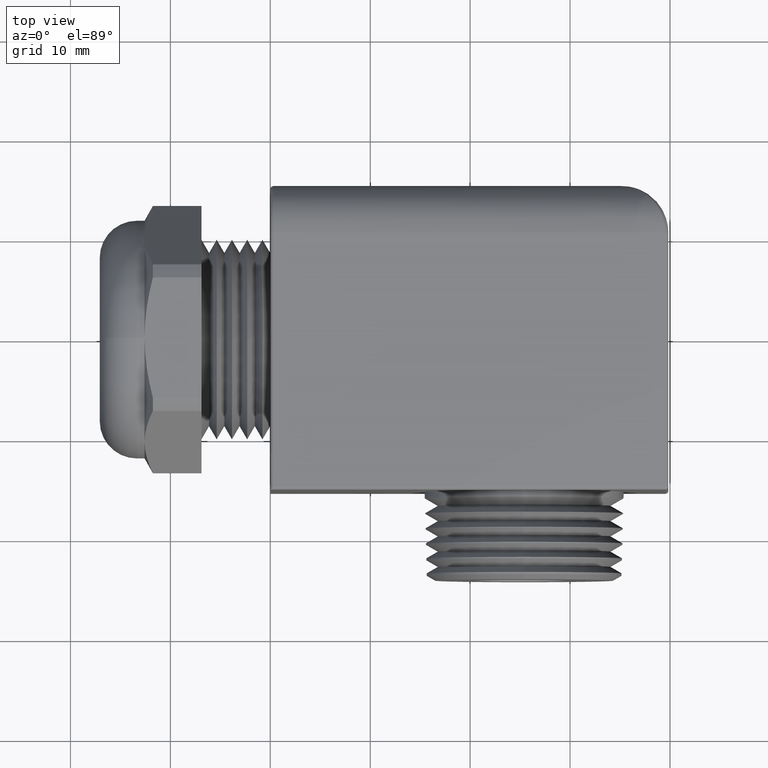
[diagram: clean part render]
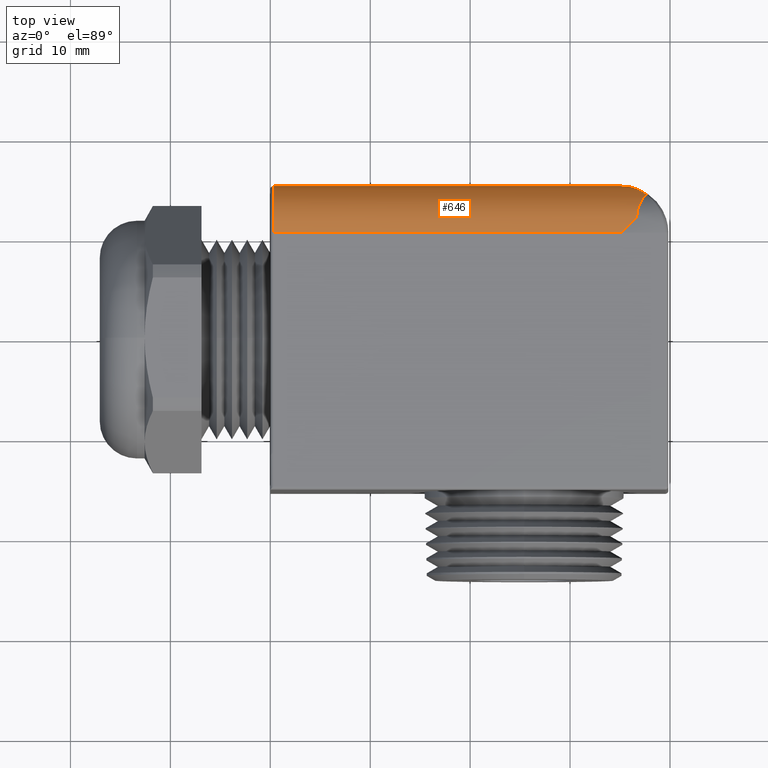
[diagram: same view with one face highlighted and labeled with its STEP entity id]
A machine part, top view. The second image highlights one B-rep face of the part: STEP entity #646.
In plain terms, the highlighted cylindrical surface (partial cylindrical patch) has radius 4.7413 mm, axis along (1, 0, 0).
Its self-contained STEP definition (entity closure, byte-faithful):
#238 = EDGE_CURVE ( 'NONE', #239, #482, #2077, .T. ) ;
#239 = VERTEX_POINT ( 'NONE', #2076 ) ;
#482 = VERTEX_POINT ( 'NONE', #2476 ) ;
#484 = EDGE_CURVE ( 'NONE', #482, #485, #2475, .T. ) ;
#485 = VERTEX_POINT ( 'NONE', #2444 ) ;
#493 = VERTEX_POINT ( 'NONE', #2500 ) ;
#495 = EDGE_CURVE ( 'NONE', #493, #496, #2499, .T. ) ;
#496 = VERTEX_POINT ( 'NONE', #2495 ) ;
#536 = ORIENTED_EDGE ( 'NONE', *, *, #537, .T. ) ;
#537 = EDGE_CURVE ( 'NONE', #493, #689, #2644, .T. ) ;
#538 = ORIENTED_EDGE ( 'NONE', *, *, #688, .F. ) ;
#563 = EDGE_CURVE ( 'NONE', #239, #496, #2690, .T. ) ;
#564 = ORIENTED_EDGE ( 'NONE', *, *, #495, .F. ) ;
#565 = ORIENTED_EDGE ( 'NONE', *, *, #484, .F. ) ;
#646 = ADVANCED_FACE ( 'NONE', ( #2749 ), #2748, .T. ) ;
#647 = EDGE_LOOP ( 'NONE', ( #648, #649, #564, #536, #538, #565 ) ) ;
#648 = ORIENTED_EDGE ( 'NONE', *, *, #238, .F. ) ;
#649 = ORIENTED_EDGE ( 'NONE', *, *, #563, .T. ) ;
#688 = EDGE_CURVE ( 'NONE', #485, #689, #2922, .T. ) ;
#689 = VERTEX_POINT ( 'NONE', #2918 ) ;
#2031 = CARTESIAN_POINT ( 'NONE',  ( 1.443555555555555700, 0.4755555555555555100, 0.4593243544286517200 ) ) ;
#2064 = CARTESIAN_POINT ( 'NONE',  ( 1.443555555555555700, 0.4852791473105351200, 0.4558865455949339700 ) ) ;
#2065 = CARTESIAN_POINT ( 'NONE',  ( 1.444676791028399500, 0.4944967769180163000, 0.4517291476199730700 ) ) ;
#2066 = CARTESIAN_POINT ( 'NONE',  ( 1.448684425202541300, 0.5120408587406277700, 0.4420830711969053800 ) ) ;
#2067 = CARTESIAN_POINT ( 'NONE',  ( 1.451588920027473000, 0.5203188183528778500, 0.4365961174392585800 ) ) ;
#2068 = CARTESIAN_POINT ( 'NONE',  ( 1.458563494603421600, 0.5353798025062430600, 0.4248961616435669200 ) ) ;
#2069 = CARTESIAN_POINT ( 'NONE',  ( 1.462670454475770700, 0.5422869855212786300, 0.4186092198190293200 ) ) ;
#2070 = CARTESIAN_POINT ( 'NONE',  ( 1.471838502381496600, 0.5549303833120774500, 0.4053123697060546100 ) ) ;
#2071 = CARTESIAN_POINT ( 'NONE',  ( 1.476800831204556400, 0.5605371625661144100, 0.3984444513949266200 ) ) ;
#2072 = CARTESIAN_POINT ( 'NONE',  ( 1.482052933150984400, 0.5655528969226058000, 0.3913779949559043100 ) ) ;
#2076 = CARTESIAN_POINT ( 'NONE',  ( 1.482052933150984400, 0.5655528969226058000, 0.3913779949559043100 ) ) ;
#2077 = B_SPLINE_CURVE_WITH_KNOTS ( 'NONE', 3,
 ( #2072, #2071, #2070, #2069, #2068, #2067, #2066, #2065, #2064, #2031 ),
 .UNSPECIFIED., .F., .F.,
 ( 4, 2, 2, 2, 4 ),
 ( 0.003495899503206311500, 0.004263502692274051200, 0.005031105881341791300, 0.005798709070409531500, 0.006566312259477271600 ),
 .UNSPECIFIED. ) ;
#2439 = CARTESIAN_POINT ( 'NONE',  ( 1.381333333333332900, 0.4133333333333332700, 0.4699999999999999200 ) ) ;
#2440 = CARTESIAN_POINT ( 'NONE',  ( 1.402581134423580800, 0.4345811344235809300, 0.4699999999999999200 ) ) ;
#2441 = CARTESIAN_POINT ( 'NONE',  ( 1.423522936573932800, 0.4555229365739328400, 0.4664069547920675600 ) ) ;
#2442 = CARTESIAN_POINT ( 'NONE',  ( 1.443555555555555700, 0.4755555555555555100, 0.4593243544286517200 ) ) ;
#2444 = CARTESIAN_POINT ( 'NONE',  ( 1.381333333333332900, 0.4133333333333332700, 0.4699999999999999200 ) ) ;
#2475 =( BOUNDED_CURVE ( )  B_SPLINE_CURVE ( 3, ( #2442, #2441, #2440, #2439 ),
 .UNSPECIFIED., .F., .T. ) 
 B_SPLINE_CURVE_WITH_KNOTS ( ( 4, 4 ),
 ( 1.230959417340774700, 1.570796326794896800 ),
 .UNSPECIFIED. ) 
 CURVE ( )  GEOMETRIC_REPRESENTATION_ITEM ( )  RATIONAL_B_SPLINE_CURVE ( ( 1.000000000000000000, 0.9903990397689925700, 0.9903990397689925700, 1.000000000000000000 ) ) 
 REPRESENTATION_ITEM ( '' )  );
#2476 = CARTESIAN_POINT ( 'NONE',  ( 1.443555555555555700, 0.4755555555555555100, 0.4593243544286517200 ) ) ;
#2495 = CARTESIAN_POINT ( 'NONE',  ( 1.381333333333333300, 0.5999999999999999800, 0.2833333333333332100 ) ) ;
#2496 = DIRECTION ( 'NONE',  ( 1.000000000000000000, 0.0000000000000000000, 0.0000000000000000000 ) ) ;
#2497 = VECTOR ( 'NONE', #2496, 39.37007874015748100 ) ;
#2498 = CARTESIAN_POINT ( 'NONE',  ( 0.0000000000000000000, 0.5999999999999999800, 0.2833333333333332100 ) ) ;
#2499 = LINE ( 'NONE', #2498, #2497 ) ;
#2500 = CARTESIAN_POINT ( 'NONE',  ( 0.01265536723163841900, 0.5999999999999999800, 0.2833333333333332100 ) ) ;
#2640 = DIRECTION ( 'NONE',  ( 0.0000000000000000000, 0.0000000000000000000, -1.000000000000000000 ) ) ;
#2641 = DIRECTION ( 'NONE',  ( 1.000000000000000000, 0.0000000000000000000, 0.0000000000000000000 ) ) ;
#2642 = CARTESIAN_POINT ( 'NONE',  ( 0.01265536723163841900, 0.4133333333333332700, 0.2833333333333332100 ) ) ;
#2643 = AXIS2_PLACEMENT_3D ( 'NONE', #2642, #2641, #2640 ) ;
#2644 = CIRCLE ( 'NONE', #2643, 0.1866666666666666800 ) ;
#2686 = CARTESIAN_POINT ( 'NONE',  ( 1.381333333333333300, 0.5999999999999999800, 0.2833333333333332100 ) ) ;
#2687 = CARTESIAN_POINT ( 'NONE',  ( 1.417717696976831000, 0.5999999999999998700, 0.3223638325145398200 ) ) ;
#2688 = CARTESIAN_POINT ( 'NONE',  ( 1.452382869104806000, 0.5881441669779280400, 0.3595501080700040400 ) ) ;
#2689 = CARTESIAN_POINT ( 'NONE',  ( 1.482052933150984400, 0.5655528969226058000, 0.3913779949559043100 ) ) ;
#2690 =( BOUNDED_CURVE ( )  B_SPLINE_CURVE ( 3, ( #2689, #2688, #2687, #2686 ),
 .UNSPECIFIED., .F., .T. ) 
 B_SPLINE_CURVE_WITH_KNOTS ( ( 4, 4 ),
 ( 0.9535268450897226300, 1.570796326794896800 ),
 .UNSPECIFIED. ) 
 CURVE ( )  GEOMETRIC_REPRESENTATION_ITEM ( )  RATIONAL_B_SPLINE_CURVE ( ( 1.000000000000000000, 0.9684994442050701700, 0.9684994442050701700, 1.000000000000000000 ) ) 
 REPRESENTATION_ITEM ( '' )  );
#2748 = CYLINDRICAL_SURFACE ( 'NONE', #2759, 0.1866666666666666800 ) ;
#2749 = FACE_OUTER_BOUND ( 'NONE', #647, .T. ) ;
#2756 = DIRECTION ( 'NONE',  ( 0.0000000000000000000, 0.0000000000000000000, -1.000000000000000000 ) ) ;
#2757 = DIRECTION ( 'NONE',  ( 1.000000000000000000, 0.0000000000000000000, 0.0000000000000000000 ) ) ;
#2758 = CARTESIAN_POINT ( 'NONE',  ( 0.0000000000000000000, 0.4133333333333332700, 0.2833333333333332100 ) ) ;
#2759 = AXIS2_PLACEMENT_3D ( 'NONE', #2758, #2757, #2756 ) ;
#2918 = CARTESIAN_POINT ( 'NONE',  ( 0.01265536723163842100, 0.4133333333333332700, 0.4699999999999999200 ) ) ;
#2919 = DIRECTION ( 'NONE',  ( -1.000000000000000000, 0.0000000000000000000, 0.0000000000000000000 ) ) ;
#2920 = VECTOR ( 'NONE', #2919, 39.37007874015748100 ) ;
#2921 = CARTESIAN_POINT ( 'NONE',  ( 1.232614984114216400, 0.4133333333333332700, 0.4699999999999999200 ) ) ;
#2922 = LINE ( 'NONE', #2921, #2920 ) ;